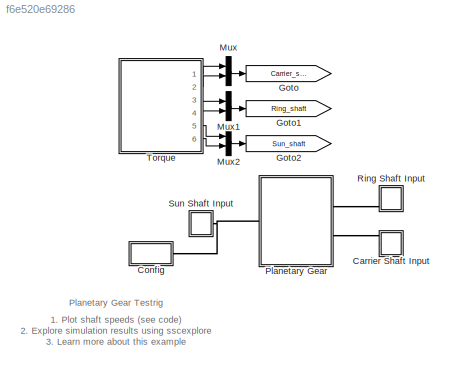
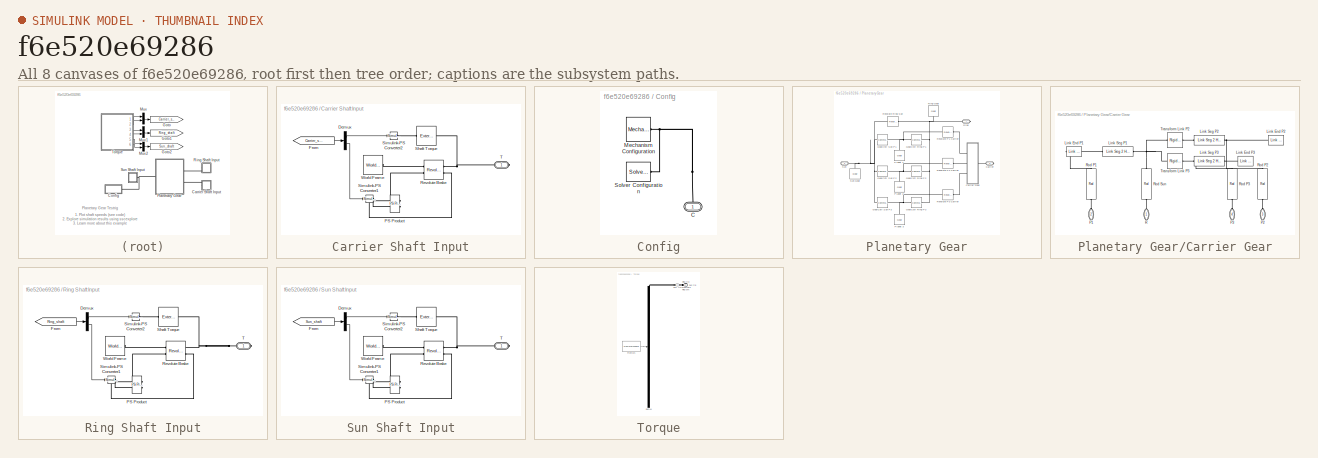
[diagram: thumbnail index - all 8 canvases of the model, root first then tree order]
MODEL slx_f6e520e69286
KIND model
CONFIG AbsTol = 1e-4
CONFIG EnableMultiTasking = on
CONFIG FixedStep = auto
CONFIG InitFcn = sun_xcdata=Extr_Data_Gear('external',rad_sun*2,45,rad_hole);\nplanet_xcdata=Extr_Data_Gear('external',rad_planet*2,15,rad_hole);\nring_xcdata=Extr_Data_Gear('internal',rad_ring*2,75,rad_ring*0.05);
CONFIG MaxStep = 0.01
CONFIG MinStep = auto
CONFIG PreLoadFcn = rad_planet = 0.26;\nrad_sun = 0.78;\nrad_ring = 2*rad_planet+rad_sun;\ngear_thickness = 0.5;\nlink_thickness = 0.1;\nrad_hole = 0.05;\n
CONFIG RelTol = 1e-3
CONFIG SampleTimeConstraint = Unconstrained
CONFIG Solver = ode45
CONFIG SolverName = ode45
CONFIG StartTime = 0.0
CONFIG StopTime = 30
BLOCK [SubSystem] Carrier Shaft Input
  Ports = [0, 0, 0, 0, 0, 0, 1]
  RequestExecContextInheritance = off
BLOCK [Demux] Carrier Shaft Input/Demux
  DisplayOption = bar
  Outputs = 2
  Ports = [1, 2]
BLOCK [From] Carrier Shaft Input/From
  GotoTag = Carrier_shaft
  TagVisibility = global
BLOCK [Reference] Carrier Shaft Input/PS Product  REF=fl_lib/Physical Signals/Functions/PS Product
  Ports = [0, 0, 0, 0, 0, 2, 1]
  SourceBlock = fl_lib/Physical Signals/Functions/PS Product
  SourceProductBaseCode = SS
  SourceProductName = Simscape
  SourceType = PS Product
BLOCK [Reference] Carrier Shaft Input/Revolute Brake  REF=sm_lib/Joints/Revolute Joint
  Ports = [0, 0, 0, 0, 0, 2, 2]
  SourceBlock = sm_lib/Joints/Revolute Joint
  SourceProductBaseCode = MS
  SourceProductName = Simscape Multibody
  SourceType = Revolute Joint
BLOCK [Reference] Carrier Shaft Input/Shaft Torque  REF=sm_lib/Forces and
Torques/External Force
and Torque
  Ports = [0, 0, 0, 0, 0, 1, 1]
  SourceBlock = sm_lib/Forces and\nTorques/External Force\nand Torque
  SourceProductBaseCode = MS
  SourceProductName = Simscape Multibody
  SourceType = External Force\nand Torque
BLOCK [Reference] Carrier Shaft Input/Simulink-PS Converter1  REF=nesl_utility/Simulink-PS
Converter
  Ports = [1, 0, 0, 0, 0, 0, 1]
  SourceBlock = nesl_utility/Simulink-PS\nConverter
  SourceProductBaseCode = SS
  SourceProductName = Simscape
  SourceType = Simulink-PS\nConverter
BLOCK [Reference] Carrier Shaft Input/Simulink-PS Converter2  REF=nesl_utility/Simulink-PS
Converter
  Ports = [1, 0, 0, 0, 0, 0, 1]
  SourceBlock = nesl_utility/Simulink-PS\nConverter
  SourceProductBaseCode = SS
  SourceProductName = Simscape
  SourceType = Simulink-PS\nConverter
BLOCK [PMIOPort] Carrier Shaft Input/T
  Side = Right
BLOCK [Reference] Carrier Shaft Input/World Frame  REF=sm_lib/Frames and
Transforms/World Frame
  Ports = [0, 0, 0, 0, 0, 0, 1]
  SourceBlock = sm_lib/Frames and\nTransforms/World Frame
  SourceProductBaseCode = MS
  SourceProductName = Simscape Multibody
  SourceType = World Frame
BLOCK [SubSystem] Config
  Ports = [0, 0, 0, 0, 0, 1]
  RequestExecContextInheritance = off
BLOCK [PMIOPort] Config/C
  Side = Left
BLOCK [Reference] Config/Mechanism Configuration  REF=sm_lib/Utilities/Mechanism
Configuration
  Ports = [0, 0, 0, 0, 0, 0, 1]
  SourceBlock = sm_lib/Utilities/Mechanism\nConfiguration
  SourceProductBaseCode = MS
  SourceProductName = Simscape Multibody
  SourceType = Mechanism\nConfiguration
BLOCK [Reference] Config/Solver Configuration  REF=nesl_utility/Solver
Configuration
  Ports = [0, 0, 0, 0, 0, 0, 1]
  SourceBlock = nesl_utility/Solver\nConfiguration
  SourceProductBaseCode = SS
  SourceProductName = Simscape
  SourceType = Solver\nConfiguration
BLOCK [Goto] Goto
  GotoTag = Carrier_shaft
  TagVisibility = global
BLOCK [Goto] Goto1
  GotoTag = Ring_shaft
  TagVisibility = global
BLOCK [Goto] Goto2
  GotoTag = Sun_shaft
  TagVisibility = global
BLOCK [Mux] Mux
  DisplayOption = bar
  Inputs = 2
  Ports = [2, 1]
BLOCK [Mux] Mux1
  DisplayOption = bar
  Inputs = 2
  Ports = [2, 1]
BLOCK [Mux] Mux2
  DisplayOption = bar
  Inputs = 2
  Ports = [2, 1]
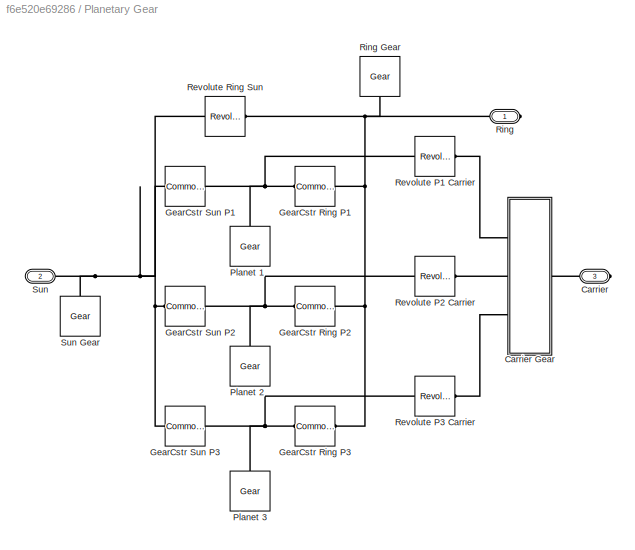
BLOCK [SubSystem] Planetary Gear
  Ports = [0, 0, 0, 0, 0, 1, 2]
  RequestExecContextInheritance = off
  Tag = PublishSubsystem
BLOCK [PMIOPort] Planetary Gear/Carrier
  Port = 3
  Side = Right
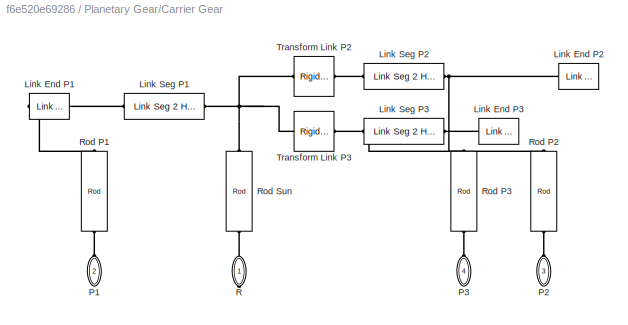
BLOCK [SubSystem] Planetary Gear/Carrier Gear
  Ports = [0, 0, 0, 0, 0, 3, 1]
  RequestExecContextInheritance = off
  Tag = PublishSubsystem
BLOCK [Reference] Planetary Gear/Carrier Gear/Link End P1  REF=Multibody_Parts_Lib/Linkages/Link End
  Ports = [0, 0, 0, 0, 0, 1]
  SourceBlock = Multibody_Parts_Lib/Linkages/Link End
  SourceProductName = Simscape Multibody Parts Library
  SourceType = Link End
BLOCK [Reference] Planetary Gear/Carrier Gear/Link End P2  REF=Multibody_Parts_Lib/Linkages/Link End
  Ports = [0, 0, 0, 0, 0, 1]
  SourceBlock = Multibody_Parts_Lib/Linkages/Link End
  SourceProductName = Simscape Multibody Parts Library
  SourceType = Link End
BLOCK [Reference] Planetary Gear/Carrier Gear/Link End P3  REF=Multibody_Parts_Lib/Linkages/Link End
  Ports = [0, 0, 0, 0, 0, 1]
  SourceBlock = Multibody_Parts_Lib/Linkages/Link End
  SourceProductName = Simscape Multibody Parts Library
  SourceType = Link End
BLOCK [Reference] Planetary Gear/Carrier Gear/Link Seg P1  REF=Multibody_Parts_Lib/Linkages/Link Seg 2 Hole
  Ports = [0, 0, 0, 0, 0, 1, 1]
  SourceBlock = Multibody_Parts_Lib/Linkages/Link Seg 2 Hole
  SourceProductName = Simscape Multibody Parts Library
  SourceType = Link Segment with 2 Holes
BLOCK [Reference] Planetary Gear/Carrier Gear/Link Seg P2  REF=Multibody_Parts_Lib/Linkages/Link Seg 2 Hole
  Ports = [0, 0, 0, 0, 0, 1, 1]
  SourceBlock = Multibody_Parts_Lib/Linkages/Link Seg 2 Hole
  SourceProductName = Simscape Multibody Parts Library
  SourceType = Link Segment with 2 Holes
BLOCK [Reference] Planetary Gear/Carrier Gear/Link Seg P3  REF=Multibody_Parts_Lib/Linkages/Link Seg 2 Hole
  Ports = [0, 0, 0, 0, 0, 1, 1]
  SourceBlock = Multibody_Parts_Lib/Linkages/Link Seg 2 Hole
  SourceProductName = Simscape Multibody Parts Library
  SourceType = Link Segment with 2 Holes
BLOCK [PMIOPort] Planetary Gear/Carrier Gear/P1
  Port = 2
  Side = Left
BLOCK [PMIOPort] Planetary Gear/Carrier Gear/P2
  Port = 3
  Side = Left
BLOCK [PMIOPort] Planetary Gear/Carrier Gear/P3
  Port = 4
  Side = Left
BLOCK [PMIOPort] Planetary Gear/Carrier Gear/R
  Side = Right
BLOCK [Reference] Planetary Gear/Carrier Gear/Rod P1  REF=Multibody_Parts_Lib/Basic/Rod
  Ports = [0, 0, 0, 0, 0, 1, 1]
  SourceBlock = Multibody_Parts_Lib/Basic/Rod
  SourceProductName = Simscape Multibody Parts Library
  SourceType = Rod
BLOCK [Reference] Planetary Gear/Carrier Gear/Rod P2  REF=Multibody_Parts_Lib/Basic/Rod
  Ports = [0, 0, 0, 0, 0, 1, 1]
  SourceBlock = Multibody_Parts_Lib/Basic/Rod
  SourceProductName = Simscape Multibody Parts Library
  SourceType = Rod
BLOCK [Reference] Planetary Gear/Carrier Gear/Rod P3  REF=Multibody_Parts_Lib/Basic/Rod
  Ports = [0, 0, 0, 0, 0, 1, 1]
  SourceBlock = Multibody_Parts_Lib/Basic/Rod
  SourceProductName = Simscape Multibody Parts Library
  SourceType = Rod
BLOCK [Reference] Planetary Gear/Carrier Gear/Rod Sun  REF=Multibody_Parts_Lib/Basic/Rod
  Ports = [0, 0, 0, 0, 0, 1, 1]
  SourceBlock = Multibody_Parts_Lib/Basic/Rod
  SourceProductName = Simscape Multibody Parts Library
  SourceType = Rod
BLOCK [Reference] Planetary Gear/Carrier Gear/Transform Link P2  REF=sm_lib/Frames and
Transforms/Rigid
Transform
  Ports = [0, 0, 0, 0, 0, 1, 1]
  SourceBlock = sm_lib/Frames and\nTransforms/Rigid\nTransform
  SourceProductBaseCode = MS
  SourceProductName = Simscape Multibody
  SourceType = Rigid\nTransform
BLOCK [Reference] Planetary Gear/Carrier Gear/Transform Link P3  REF=sm_lib/Frames and
Transforms/Rigid
Transform
  Ports = [0, 0, 0, 0, 0, 1, 1]
  SourceBlock = sm_lib/Frames and\nTransforms/Rigid\nTransform
  SourceProductBaseCode = MS
  SourceProductName = Simscape Multibody
  SourceType = Rigid\nTransform
BLOCK [Reference] Planetary Gear/GearCstr Ring P1  REF=sm_lib/Gears and
Couplings/Gears/Common Gear
Constraint
  Ports = [0, 0, 0, 0, 0, 1, 1]
  SourceBlock = sm_lib/Gears and\nCouplings/Gears/Common Gear\nConstraint
  SourceProductBaseCode = MS
  SourceProductName = Simscape Multibody
  SourceType = Common Gear\nConstraint
BLOCK [Reference] Planetary Gear/GearCstr Ring P2  REF=sm_lib/Gears and
Couplings/Gears/Common Gear
Constraint
  Ports = [0, 0, 0, 0, 0, 1, 1]
  SourceBlock = sm_lib/Gears and\nCouplings/Gears/Common Gear\nConstraint
  SourceProductBaseCode = MS
  SourceProductName = Simscape Multibody
  SourceType = Common Gear\nConstraint
BLOCK [Reference] Planetary Gear/GearCstr Ring P3  REF=sm_lib/Gears and
Couplings/Gears/Common Gear
Constraint
  Ports = [0, 0, 0, 0, 0, 1, 1]
  SourceBlock = sm_lib/Gears and\nCouplings/Gears/Common Gear\nConstraint
  SourceProductBaseCode = MS
  SourceProductName = Simscape Multibody
  SourceType = Common Gear\nConstraint
BLOCK [Reference] Planetary Gear/GearCstr Sun P1  REF=sm_lib/Gears and
Couplings/Gears/Common Gear
Constraint
  Ports = [0, 0, 0, 0, 0, 1, 1]
  SourceBlock = sm_lib/Gears and\nCouplings/Gears/Common Gear\nConstraint
  SourceProductBaseCode = MS
  SourceProductName = Simscape Multibody
  SourceType = Common Gear\nConstraint
BLOCK [Reference] Planetary Gear/GearCstr Sun P2  REF=sm_lib/Gears and
Couplings/Gears/Common Gear
Constraint
  Ports = [0, 0, 0, 0, 0, 1, 1]
  SourceBlock = sm_lib/Gears and\nCouplings/Gears/Common Gear\nConstraint
  SourceProductBaseCode = MS
  SourceProductName = Simscape Multibody
  SourceType = Common Gear\nConstraint
BLOCK [Reference] Planetary Gear/GearCstr Sun P3  REF=sm_lib/Gears and
Couplings/Gears/Common Gear
Constraint
  Ports = [0, 0, 0, 0, 0, 1, 1]
  SourceBlock = sm_lib/Gears and\nCouplings/Gears/Common Gear\nConstraint
  SourceProductBaseCode = MS
  SourceProductName = Simscape Multibody
  SourceType = Common Gear\nConstraint
BLOCK [Reference] Planetary Gear/Planet 1  REF=Multibody_Parts_Lib/Gears/Gear
  Ports = [0, 0, 0, 0, 0, 0, 1]
  SourceBlock = Multibody_Parts_Lib/Gears/Gear
  SourceProductName = Simscape Multibody Parts Library
  SourceType = Gear
BLOCK [Reference] Planetary Gear/Planet 2  REF=Multibody_Parts_Lib/Gears/Gear
  Ports = [0, 0, 0, 0, 0, 0, 1]
  SourceBlock = Multibody_Parts_Lib/Gears/Gear
  SourceProductName = Simscape Multibody Parts Library
  SourceType = Gear
BLOCK [Reference] Planetary Gear/Planet 3  REF=Multibody_Parts_Lib/Gears/Gear
  Ports = [0, 0, 0, 0, 0, 0, 1]
  SourceBlock = Multibody_Parts_Lib/Gears/Gear
  SourceProductName = Simscape Multibody Parts Library
  SourceType = Gear
BLOCK [Reference] Planetary Gear/Revolute P1 Carrier  REF=sm_lib/Joints/Revolute Joint
  Ports = [0, 0, 0, 0, 0, 1, 1]
  SourceBlock = sm_lib/Joints/Revolute Joint
  SourceProductBaseCode = MS
  SourceProductName = Simscape Multibody
  SourceType = Revolute Joint
BLOCK [Reference] Planetary Gear/Revolute P2 Carrier  REF=sm_lib/Joints/Revolute Joint
  Ports = [0, 0, 0, 0, 0, 1, 1]
  SourceBlock = sm_lib/Joints/Revolute Joint
  SourceProductBaseCode = MS
  SourceProductName = Simscape Multibody
  SourceType = Revolute Joint
BLOCK [Reference] Planetary Gear/Revolute P3 Carrier  REF=sm_lib/Joints/Revolute Joint
  Ports = [0, 0, 0, 0, 0, 1, 1]
  SourceBlock = sm_lib/Joints/Revolute Joint
  SourceProductBaseCode = MS
  SourceProductName = Simscape Multibody
  SourceType = Revolute Joint
BLOCK [Reference] Planetary Gear/Revolute Ring Sun  REF=sm_lib/Joints/Revolute Joint
  Ports = [0, 0, 0, 0, 0, 1, 1]
  SourceBlock = sm_lib/Joints/Revolute Joint
  SourceProductBaseCode = MS
  SourceProductName = Simscape Multibody
  SourceType = Revolute Joint
BLOCK [PMIOPort] Planetary Gear/Ring
  Side = Right
BLOCK [Reference] Planetary Gear/Ring Gear  REF=Multibody_Parts_Lib/Gears/Gear
  Ports = [0, 0, 0, 0, 0, 0, 1]
  SourceBlock = Multibody_Parts_Lib/Gears/Gear
  SourceProductName = Simscape Multibody Parts Library
  SourceType = Gear
BLOCK [PMIOPort] Planetary Gear/Sun
  Port = 2
  Side = Left
BLOCK [Reference] Planetary Gear/Sun Gear  REF=Multibody_Parts_Lib/Gears/Gear
  Ports = [0, 0, 0, 0, 0, 0, 1]
  SourceBlock = Multibody_Parts_Lib/Gears/Gear
  SourceProductName = Simscape Multibody Parts Library
  SourceType = Gear
BLOCK [SubSystem] Ring Shaft Input
  Ports = [0, 0, 0, 0, 0, 0, 1]
  RequestExecContextInheritance = off
BLOCK [Demux] Ring Shaft Input/Demux
  DisplayOption = bar
  Outputs = 2
  Ports = [1, 2]
BLOCK [From] Ring Shaft Input/From
  GotoTag = Ring_shaft
  TagVisibility = global
BLOCK [Reference] Ring Shaft Input/PS Product  REF=fl_lib/Physical Signals/Functions/PS Product
  Ports = [0, 0, 0, 0, 0, 2, 1]
  SourceBlock = fl_lib/Physical Signals/Functions/PS Product
  SourceProductBaseCode = SS
  SourceProductName = Simscape
  SourceType = PS Product
BLOCK [Reference] Ring Shaft Input/Revolute Brake  REF=sm_lib/Joints/Revolute Joint
  Ports = [0, 0, 0, 0, 0, 2, 2]
  SourceBlock = sm_lib/Joints/Revolute Joint
  SourceProductBaseCode = MS
  SourceProductName = Simscape Multibody
  SourceType = Revolute Joint
BLOCK [Reference] Ring Shaft Input/Shaft Torque  REF=sm_lib/Forces and
Torques/External Force
and Torque
  Ports = [0, 0, 0, 0, 0, 1, 1]
  SourceBlock = sm_lib/Forces and\nTorques/External Force\nand Torque
  SourceProductBaseCode = MS
  SourceProductName = Simscape Multibody
  SourceType = External Force\nand Torque
BLOCK [Reference] Ring Shaft Input/Simulink-PS Converter1  REF=nesl_utility/Simulink-PS
Converter
  Ports = [1, 0, 0, 0, 0, 0, 1]
  SourceBlock = nesl_utility/Simulink-PS\nConverter
  SourceProductBaseCode = SS
  SourceProductName = Simscape
  SourceType = Simulink-PS\nConverter
BLOCK [Reference] Ring Shaft Input/Simulink-PS Converter2  REF=nesl_utility/Simulink-PS
Converter
  Ports = [1, 0, 0, 0, 0, 0, 1]
  SourceBlock = nesl_utility/Simulink-PS\nConverter
  SourceProductBaseCode = SS
  SourceProductName = Simscape
  SourceType = Simulink-PS\nConverter
BLOCK [PMIOPort] Ring Shaft Input/T
  Side = Right
BLOCK [Reference] Ring Shaft Input/World Frame  REF=sm_lib/Frames and
Transforms/World Frame
  Ports = [0, 0, 0, 0, 0, 0, 1]
  SourceBlock = sm_lib/Frames and\nTransforms/World Frame
  SourceProductBaseCode = MS
  SourceProductName = Simscape Multibody
  SourceType = World Frame
BLOCK [SubSystem] Sun Shaft Input
  Ports = [0, 0, 0, 0, 0, 0, 1]
  RequestExecContextInheritance = off
  Tag = PublishSubsystem
BLOCK [Demux] Sun Shaft Input/Demux
  DisplayOption = bar
  Outputs = 2
  Ports = [1, 2]
BLOCK [From] Sun Shaft Input/From
  GotoTag = Sun_shaft
  TagVisibility = global
BLOCK [Reference] Sun Shaft Input/PS Product  REF=fl_lib/Physical Signals/Functions/PS Product
  Ports = [0, 0, 0, 0, 0, 2, 1]
  SourceBlock = fl_lib/Physical Signals/Functions/PS Product
  SourceProductBaseCode = SS
  SourceProductName = Simscape
  SourceType = PS Product
BLOCK [Reference] Sun Shaft Input/Revolute Brake  REF=sm_lib/Joints/Revolute Joint
  Ports = [0, 0, 0, 0, 0, 2, 2]
  SourceBlock = sm_lib/Joints/Revolute Joint
  SourceProductBaseCode = MS
  SourceProductName = Simscape Multibody
  SourceType = Revolute Joint
BLOCK [Reference] Sun Shaft Input/Shaft Torque  REF=sm_lib/Forces and
Torques/External Force
and Torque
  Ports = [0, 0, 0, 0, 0, 1, 1]
  SourceBlock = sm_lib/Forces and\nTorques/External Force\nand Torque
  SourceProductBaseCode = MS
  SourceProductName = Simscape Multibody
  SourceType = External Force\nand Torque
BLOCK [Reference] Sun Shaft Input/Simulink-PS Converter1  REF=nesl_utility/Simulink-PS
Converter
  Ports = [1, 0, 0, 0, 0, 0, 1]
  SourceBlock = nesl_utility/Simulink-PS\nConverter
  SourceProductBaseCode = SS
  SourceProductName = Simscape
  SourceType = Simulink-PS\nConverter
BLOCK [Reference] Sun Shaft Input/Simulink-PS Converter2  REF=nesl_utility/Simulink-PS
Converter
  Ports = [1, 0, 0, 0, 0, 0, 1]
  SourceBlock = nesl_utility/Simulink-PS\nConverter
  SourceProductBaseCode = SS
  SourceProductName = Simscape
  SourceType = Simulink-PS\nConverter
BLOCK [PMIOPort] Sun Shaft Input/T
  Side = Right
BLOCK [Reference] Sun Shaft Input/World Frame  REF=sm_lib/Frames and
Transforms/World Frame
  Ports = [0, 0, 0, 0, 0, 0, 1]
  SourceBlock = sm_lib/Frames and\nTransforms/World Frame
  SourceProductBaseCode = MS
  SourceProductName = Simscape Multibody
  SourceType = World Frame
BLOCK [SubSystem] Torque
  ClipboardFcn = sigbuilder_block('clipboard');
  CloseFcn = sigbuilder_block('close');
  ContinueFcn = sigbuilder_block('continue');
  CopyFcn = sigbuilder_block('copy');
  DeleteFcn = sigbuilder_block('delete');
  LoadFcn = sigbuilder_block('load');
  MaskHideContents = on
  ModelCloseFcn = sigbuilder_block('modelClose');
  NameChangeFcn = sigbuilder_block('namechange');
  OpenFcn = sigbuilder_block('open',[23.4 13.8 618.6 562.8 ]);
  PauseFcn = sigbuilder_block('pause');
  Ports = [0, 6]
  PreSaveFcn = sigbuilder_block('preSave');
  RequestExecContextInheritance = off
  StartFcn = sigbuilder_block('start');
  StopFcn = sigbuilder_block('stop');
  Tag = STV Subsys
BLOCK [Outport] Torque/Carr brk
  IconDisplay = Port number
  Port = 2
  Tag = STV Outport
BLOCK [Outport] Torque/Carr trq
  IconDisplay = Port number
  Tag = STV Outport
BLOCK [Demux] Torque/Demux
  Outputs = 6
  Ports = [1, 6]
  Tag = STV Demux
BLOCK [FromWorkspace] Torque/FromWs
  SampleTime = 0
  Tag = STV FromWs
  VariableName = tuvar
  ZeroCross = on
BLOCK [Outport] Torque/Ring brk
  IconDisplay = Port number
  Port = 4
  Tag = STV Outport
BLOCK [Outport] Torque/Ring trq
  IconDisplay = Port number
  Port = 3
  Tag = STV Outport
BLOCK [Outport] Torque/Sun brk
  IconDisplay = Port number
  Port = 6
  Tag = STV Outport
BLOCK [Outport] Torque/Sun trq
  IconDisplay = Port number
  Port = 5
  Tag = STV Outport
ANNOTATION (root): 1. Plot shaft speeds ( see code ) 2. Explore simulation results using sscexplore 3. Learn more about this example
ANNOTATION (root): Planetary Gear Testrig
LINE Carrier Shaft Input/Demux:1 -> Carrier Shaft Input/Simulink-PS Converter2:1
LINE Carrier Shaft Input/Demux:2 -> Carrier Shaft Input/Simulink-PS Converter1:1
LINE Carrier Shaft Input/From:1 -> Carrier Shaft Input/Demux:1
LINE Mux1:1 -> Goto1:1
LINE Mux2:1 -> Goto2:1
LINE Mux:1 -> Goto:1
LINE Ring Shaft Input/Demux:1 -> Ring Shaft Input/Simulink-PS Converter2:1
LINE Ring Shaft Input/Demux:2 -> Ring Shaft Input/Simulink-PS Converter1:1
LINE Ring Shaft Input/From:1 -> Ring Shaft Input/Demux:1
LINE Sun Shaft Input/Demux:1 -> Sun Shaft Input/Simulink-PS Converter2:1
LINE Sun Shaft Input/Demux:2 -> Sun Shaft Input/Simulink-PS Converter1:1
LINE Sun Shaft Input/From:1 -> Sun Shaft Input/Demux:1
LINE Torque:1 -> Mux:1
LINE Torque:2 -> Mux:2
LINE Torque:3 -> Mux1:1
LINE Torque:4 -> Mux1:2
LINE Torque:5 -> Mux2:1
LINE Torque:6 -> Mux2:2
PLINE Carrier Shaft Input/PS Product:LConn1 -- Carrier Shaft Input/Revolute Brake:RConn2
PLINE Carrier Shaft Input/PS Product:LConn2 -- Carrier Shaft Input/Simulink-PS Converter1:RConn1
PLINE Carrier Shaft Input/PS Product:RConn1 -- Carrier Shaft Input/Revolute Brake:LConn2
PLINE Carrier Shaft Input/Revolute Brake:LConn1 -- Carrier Shaft Input/World Frame:RConn1
PNET net1: Carrier Shaft Input/Revolute Brake:RConn1 -- Carrier Shaft Input/Shaft Torque:RConn1 -- Carrier Shaft Input/T:RConn1
PLINE Carrier Shaft Input/Shaft Torque:LConn1 -- Carrier Shaft Input/Simulink-PS Converter2:RConn1
PLINE Carrier Shaft Input:RConn1 -- Planetary Gear:RConn2
PNET net2: Config/C:RConn1 -- Config/Mechanism Configuration:RConn1 -- Config/Solver Configuration:RConn1
PNET net3: Config:LConn1 -- Planetary Gear:LConn1 -- Sun Shaft Input:RConn1
PNET net4: Planetary Gear/Carrier Gear/Link End P1:LConn1 -- Planetary Gear/Carrier Gear/Link Seg P1:RConn1 -- Planetary Gear/Carrier Gear/Rod P1:RConn1
PNET net5: Planetary Gear/Carrier Gear/Link End P2:LConn1 -- Planetary Gear/Carrier Gear/Link Seg P2:RConn1 -- Planetary Gear/Carrier Gear/Rod P2:RConn1
PNET net6: Planetary Gear/Carrier Gear/Link End P3:LConn1 -- Planetary Gear/Carrier Gear/Link Seg P3:RConn1 -- Planetary Gear/Carrier Gear/Rod P3:RConn1
PNET net7: Planetary Gear/Carrier Gear/Link Seg P1:LConn1 -- Planetary Gear/Carrier Gear/Rod Sun:RConn1 -- Planetary Gear/Carrier Gear/Transform Link P2:LConn1 -- Planetary Gear/Carrier Gear/Transform Link P3:LConn1
PLINE Planetary Gear/Carrier Gear/Link Seg P2:LConn1 -- Planetary Gear/Carrier Gear/Transform Link P2:RConn1
PLINE Planetary Gear/Carrier Gear/Link Seg P3:LConn1 -- Planetary Gear/Carrier Gear/Transform Link P3:RConn1
PLINE Planetary Gear/Carrier Gear/P1:RConn1 -- Planetary Gear/Carrier Gear/Rod P1:LConn1
PLINE Planetary Gear/Carrier Gear/P2:RConn1 -- Planetary Gear/Carrier Gear/Rod P2:LConn1
PLINE Planetary Gear/Carrier Gear/P3:RConn1 -- Planetary Gear/Carrier Gear/Rod P3:LConn1
PLINE Planetary Gear/Carrier Gear/R:RConn1 -- Planetary Gear/Carrier Gear/Rod Sun:LConn1
PLINE Planetary Gear/Carrier Gear:LConn1 -- Planetary Gear/Revolute P1 Carrier:RConn1
PLINE Planetary Gear/Carrier Gear:LConn2 -- Planetary Gear/Revolute P2 Carrier:RConn1
PLINE Planetary Gear/Carrier Gear:LConn3 -- Planetary Gear/Revolute P3 Carrier:RConn1
PLINE Planetary Gear/Carrier Gear:RConn1 -- Planetary Gear/Carrier:RConn1
PNET net8: Planetary Gear/GearCstr Ring P1:LConn1 -- Planetary Gear/GearCstr Ring P2:LConn1 -- Planetary Gear/GearCstr Ring P3:LConn1 -- Planetary Gear/Revolute Ring Sun:LConn1 -- Planetary Gear/Ring Gear:RConn1 -- Planetary Gear/Ring:RConn1
PNET net9: Planetary Gear/GearCstr Ring P1:RConn1 -- Planetary Gear/GearCstr Sun P1:RConn1 -- Planetary Gear/Planet 1:RConn1 -- Planetary Gear/Revolute P1 Carrier:LConn1
PNET net10: Planetary Gear/GearCstr Ring P2:RConn1 -- Planetary Gear/GearCstr Sun P2:RConn1 -- Planetary Gear/Planet 2:RConn1 -- Planetary Gear/Revolute P2 Carrier:LConn1
PNET net11: Planetary Gear/GearCstr Ring P3:RConn1 -- Planetary Gear/GearCstr Sun P3:RConn1 -- Planetary Gear/Planet 3:RConn1 -- Planetary Gear/Revolute P3 Carrier:LConn1
PNET net12: Planetary Gear/GearCstr Sun P1:LConn1 -- Planetary Gear/GearCstr Sun P2:LConn1 -- Planetary Gear/GearCstr Sun P3:LConn1 -- Planetary Gear/Revolute Ring Sun:RConn1 -- Planetary Gear/Sun Gear:RConn1 -- Planetary Gear/Sun:RConn1
PLINE Planetary Gear:RConn1 -- Ring Shaft Input:RConn1
PLINE Ring Shaft Input/PS Product:LConn1 -- Ring Shaft Input/Revolute Brake:RConn2
PLINE Ring Shaft Input/PS Product:LConn2 -- Ring Shaft Input/Simulink-PS Converter1:RConn1
PLINE Ring Shaft Input/PS Product:RConn1 -- Ring Shaft Input/Revolute Brake:LConn2
PLINE Ring Shaft Input/Revolute Brake:LConn1 -- Ring Shaft Input/World Frame:RConn1
PNET net13: Ring Shaft Input/Revolute Brake:RConn1 -- Ring Shaft Input/Shaft Torque:RConn1 -- Ring Shaft Input/T:RConn1
PLINE Ring Shaft Input/Shaft Torque:LConn1 -- Ring Shaft Input/Simulink-PS Converter2:RConn1
PLINE Sun Shaft Input/PS Product:LConn1 -- Sun Shaft Input/Revolute Brake:RConn2
PLINE Sun Shaft Input/PS Product:LConn2 -- Sun Shaft Input/Simulink-PS Converter1:RConn1
PLINE Sun Shaft Input/PS Product:RConn1 -- Sun Shaft Input/Revolute Brake:LConn2
PLINE Sun Shaft Input/Revolute Brake:LConn1 -- Sun Shaft Input/World Frame:RConn1
PNET net14: Sun Shaft Input/Revolute Brake:RConn1 -- Sun Shaft Input/Shaft Torque:RConn1 -- Sun Shaft Input/T:RConn1
PLINE Sun Shaft Input/Shaft Torque:LConn1 -- Sun Shaft Input/Simulink-PS Converter2:RConn1
note: PNET lines group multi-terminal physical nets as a canonical sorted terminal list (undirected conserving connections); 2-terminal nets keep the pairwise PLINE form
